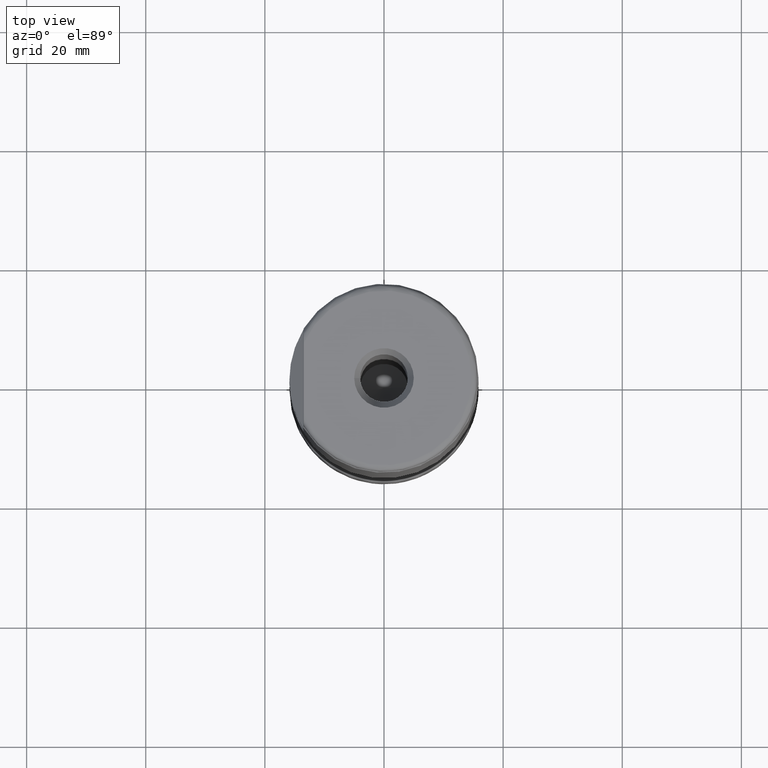
[diagram: clean part render]
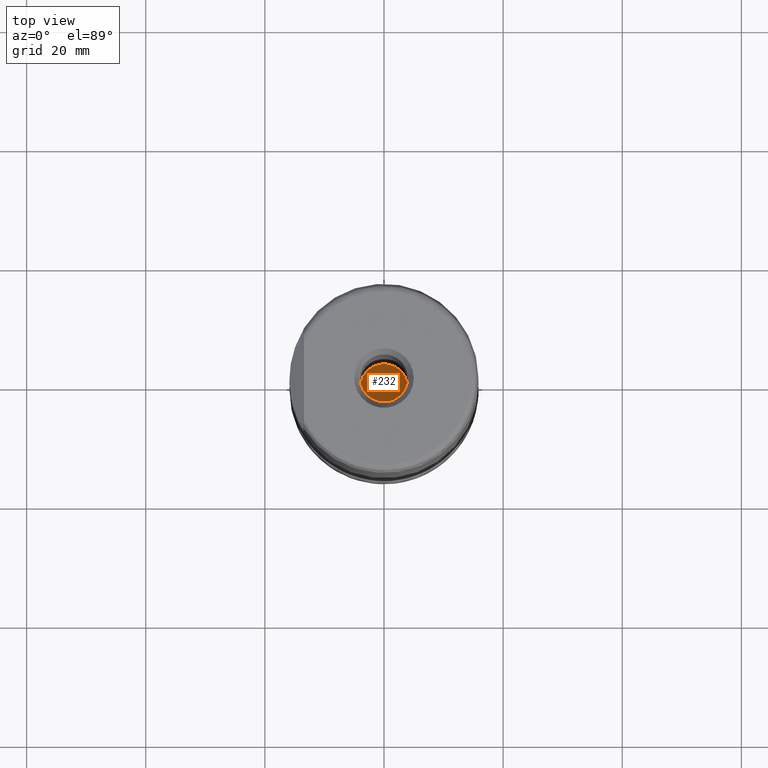
[diagram: same view with one face highlighted and labeled with its STEP entity id]
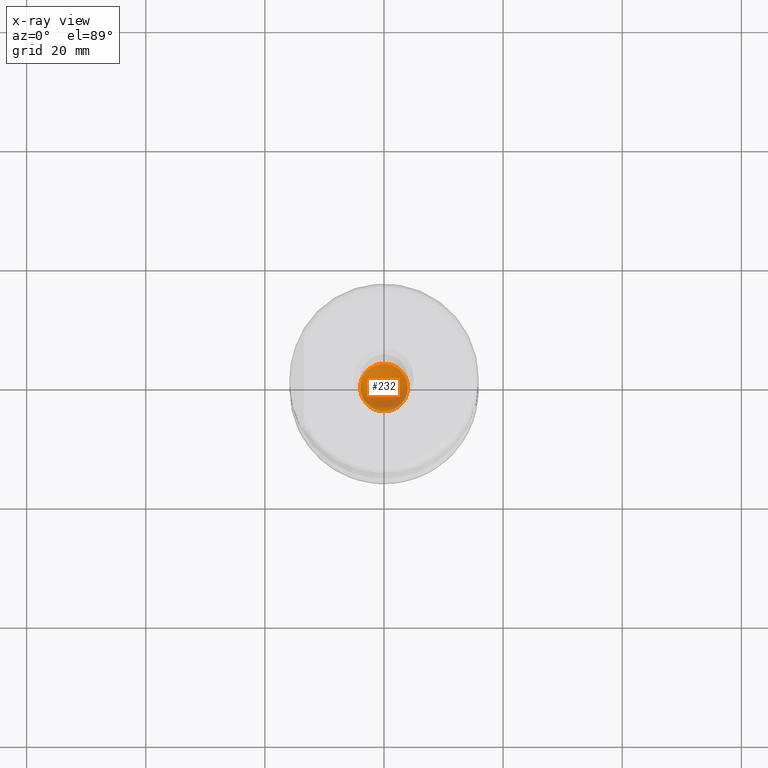
[diagram: x-ray of the same camera — body ghosted, the highlighted face saturated]
A machine part, top view. The second image highlights one B-rep face of the part: STEP entity #232.
The next image is the same camera in x-ray: the body ghosted, the highlighted face saturated — about 26% of this face is hidden behind the body in this view.
In plain terms, the highlighted conical surface has half-angle 59 deg.
Its self-contained STEP definition (entity closure, byte-faithful):
#191=VERTEX_LOOP('',#726);
#207=CONICAL_SURFACE('',#1008,4.,59.);
#232=ADVANCED_FACE('',(#335,#336),#207,.F.);
#335=FACE_BOUND('',#442,.T.);
#336=FACE_BOUND('',#191,.T.);
#442=EDGE_LOOP('',(#577));
#577=ORIENTED_EDGE('',*,*,#799,.T.);
#725=VERTEX_POINT('',#2098);
#726=VERTEX_POINT('',#2099);
#799=EDGE_CURVE('',#725,#725,#856,.T.);
#856=CIRCLE('',#1007,4.);
#1007=AXIS2_PLACEMENT_3D('',#2097,#1105,#1106);
#1008=AXIS2_PLACEMENT_3D('',#2100,#1107,#1108);
#1105=DIRECTION('',(1.17145536458252E-15,0.,1.));
#1106=DIRECTION('',(-1.,0.,8.67361737988404E-16));
#1107=DIRECTION('',(1.17145536458252E-15,0.,1.));
#1108=DIRECTION('',(1.,0.,-1.20620031201121E-15));
#2097=CARTESIAN_POINT('',(2.37805439010252E-14,0.,20.3));
#2098=CARTESIAN_POINT('',(-3.99999999999998,0.,20.3));
#2099=CARTESIAN_POINT('',(2.09650183189204E-14,0.,17.8965575238898));
#2100=CARTESIAN_POINT('',(2.37805439010252E-14,0.,20.3));